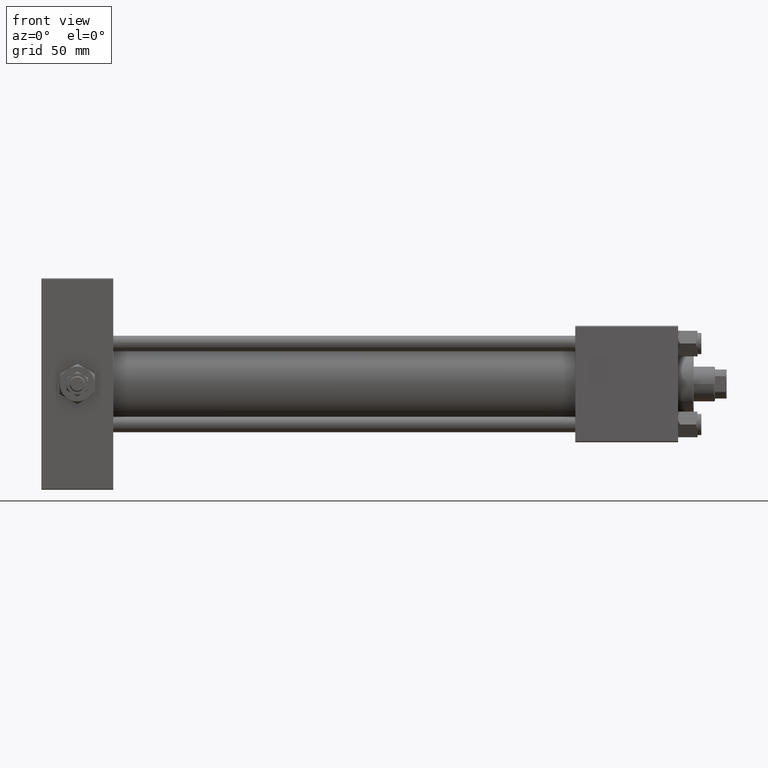
[diagram: clean part render]
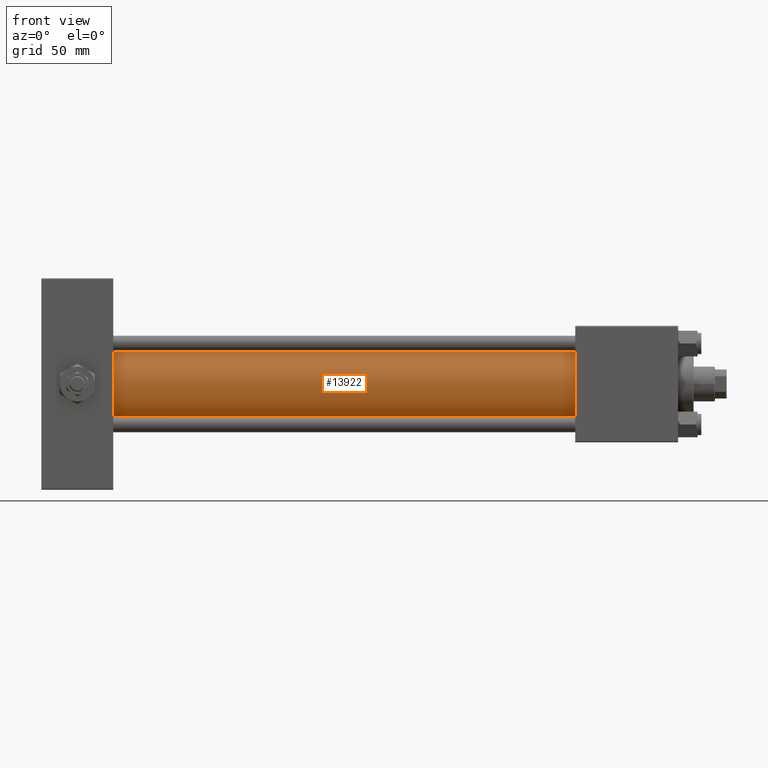
[diagram: same view with one face highlighted and labeled with its STEP entity id]
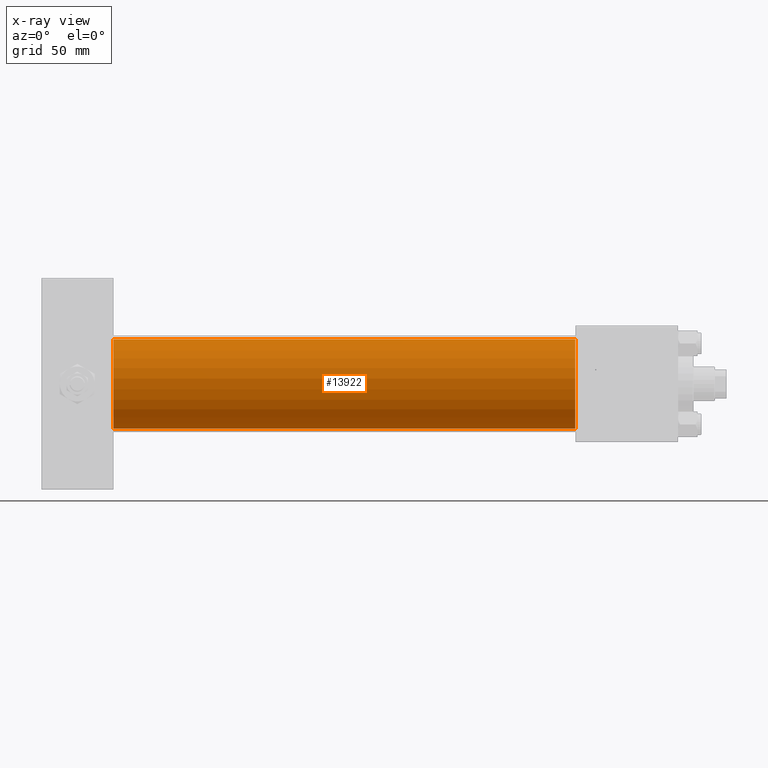
[diagram: x-ray of the same camera — body ghosted, the highlighted face saturated]
A machine part, front view. The second image highlights one B-rep face of the part: STEP entity #13922.
The next image is the same camera in x-ray: the body ghosted, the highlighted face saturated — about 0% of this face is hidden behind the body in this view.
In plain terms, the highlighted cylindrical surface (partial cylindrical patch) has radius 23 mm, axis along (-1, -0, -0).
Its self-contained STEP definition (entity closure, byte-faithful):
#163 = FACE_OUTER_BOUND ( 'NONE', #28624, .T. ) ;
#2338 = VECTOR ( 'NONE', #44448, 1000.000000000000000 ) ;
#2633 = LINE ( 'NONE', #22805, #8591 ) ;
#5407 = CARTESIAN_POINT ( 'NONE',  ( 37.00000000000000711, -2.602085213965210642E-15, 23.00000000000000000 ) ) ;
#6474 = ORIENTED_EDGE ( 'NONE', *, *, #37279, .T. ) ;
#7549 = DIRECTION ( 'NONE',  ( 0.000000000000000000, 0.000000000000000000, -1.000000000000000000 ) ) ;
#7701 = VERTEX_POINT ( 'NONE', #17992 ) ;
#8591 = VECTOR ( 'NONE', #21561, 1000.000000000000000 ) ;
#9533 = ORIENTED_EDGE ( 'NONE', *, *, #26048, .F. ) ;
#9792 = EDGE_CURVE ( 'NONE', #26228, #12244, #2633, .T. ) ;
#12244 = VERTEX_POINT ( 'NONE', #5407 ) ;
#13120 = AXIS2_PLACEMENT_3D ( 'NONE', #50579, #14194, #21781 ) ;
#13780 = VERTEX_POINT ( 'NONE', #18793 ) ;
#13922 = ADVANCED_FACE ( 'NONE', ( #163 ), #23740, .T. ) ;
#14194 = DIRECTION ( 'NONE',  ( 1.000000000000000000, -0.000000000000000000, 0.000000000000000000 ) ) ;
#16152 = CARTESIAN_POINT ( 'NONE',  ( 274.9999999999999432, -2.602085213965210642E-15, 0.000000000000000000 ) ) ;
#16364 = EDGE_CURVE ( 'NONE', #26228, #7701, #21335, .T. ) ;
#17190 = AXIS2_PLACEMENT_3D ( 'NONE', #31134, #43165, #7549 ) ;
#17992 = CARTESIAN_POINT ( 'NONE',  ( 274.9999999999999432, 2.146024240737016609E-16, -23.00000000000000000 ) ) ;
#18793 = CARTESIAN_POINT ( 'NONE',  ( 37.00000000000000711, 2.146024240737016609E-16, -23.00000000000000000 ) ) ;
#18961 = CIRCLE ( 'NONE', #13120, 23.00000000000000000 ) ;
#20594 = DIRECTION ( 'NONE',  ( -1.000000000000000000, -0.000000000000000000, -0.000000000000000000 ) ) ;
#21335 = CIRCLE ( 'NONE', #17190, 23.00000000000000000 ) ;
#21561 = DIRECTION ( 'NONE',  ( -1.000000000000000000, -0.000000000000000000, -0.000000000000000000 ) ) ;
#21781 = DIRECTION ( 'NONE',  ( 0.000000000000000000, 0.000000000000000000, 1.000000000000000000 ) ) ;
#22805 = CARTESIAN_POINT ( 'NONE',  ( 274.9999999999999432, -2.602085213965210642E-15, 23.00000000000000000 ) ) ;
#23740 = CYLINDRICAL_SURFACE ( 'NONE', #28805, 23.00000000000000000 ) ;
#24808 = CARTESIAN_POINT ( 'NONE',  ( 274.9999999999999432, 2.146024240737016609E-16, -23.00000000000000000 ) ) ;
#26048 = EDGE_CURVE ( 'NONE', #7701, #13780, #36599, .T. ) ;
#26228 = VERTEX_POINT ( 'NONE', #31184 ) ;
#28624 = EDGE_LOOP ( 'NONE', ( #9533, #38922, #30185, #6474 ) ) ;
#28805 = AXIS2_PLACEMENT_3D ( 'NONE', #16152, #20594, #36305 ) ;
#30185 = ORIENTED_EDGE ( 'NONE', *, *, #9792, .T. ) ;
#31134 = CARTESIAN_POINT ( 'NONE',  ( 274.9999999999999432, -2.602085213965210642E-15, 0.000000000000000000 ) ) ;
#31184 = CARTESIAN_POINT ( 'NONE',  ( 274.9999999999999432, -2.602085213965210642E-15, 23.00000000000000000 ) ) ;
#36305 = DIRECTION ( 'NONE',  ( 0.000000000000000000, 0.000000000000000000, 1.000000000000000000 ) ) ;
#36599 = LINE ( 'NONE', #24808, #2338 ) ;
#37279 = EDGE_CURVE ( 'NONE', #12244, #13780, #18961, .T. ) ;
#38922 = ORIENTED_EDGE ( 'NONE', *, *, #16364, .F. ) ;
#43165 = DIRECTION ( 'NONE',  ( 1.000000000000000000, 0.000000000000000000, 0.000000000000000000 ) ) ;
#44448 = DIRECTION ( 'NONE',  ( -1.000000000000000000, -0.000000000000000000, -0.000000000000000000 ) ) ;
#50579 = CARTESIAN_POINT ( 'NONE',  ( 37.00000000000000711, -2.602085213965210642E-15, 0.000000000000000000 ) ) ;